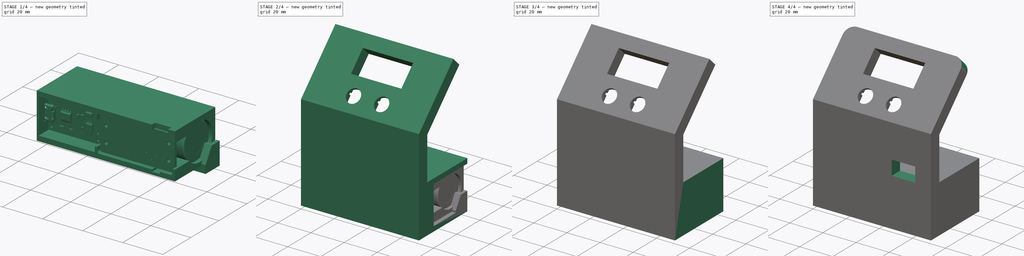
[diagram: build sequence overview — one tinted view per stage of 4, left to right]
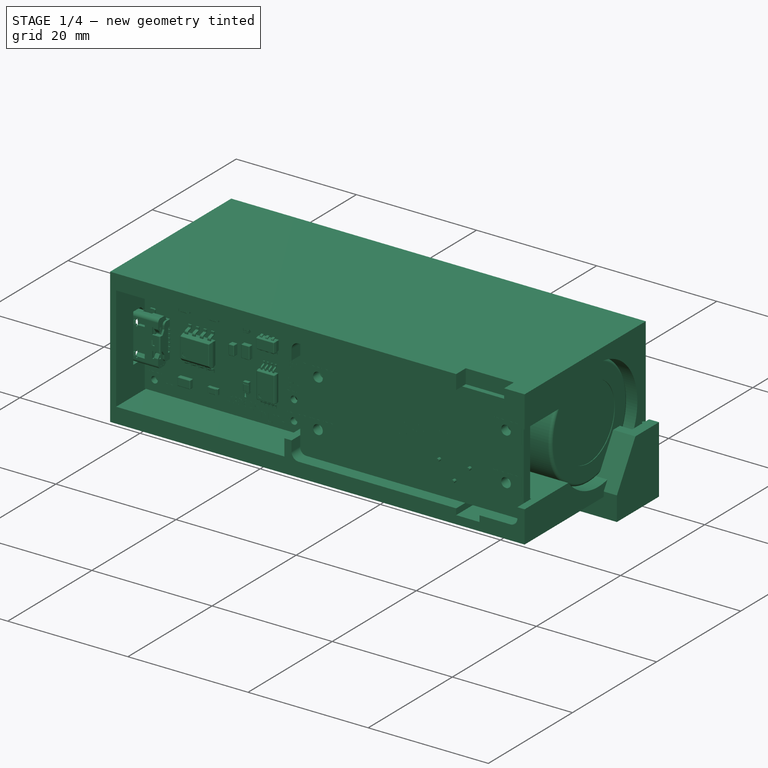
[diagram: stage 1 of 4 — iso view after this stage's code; geometry added in this stage tinted green]
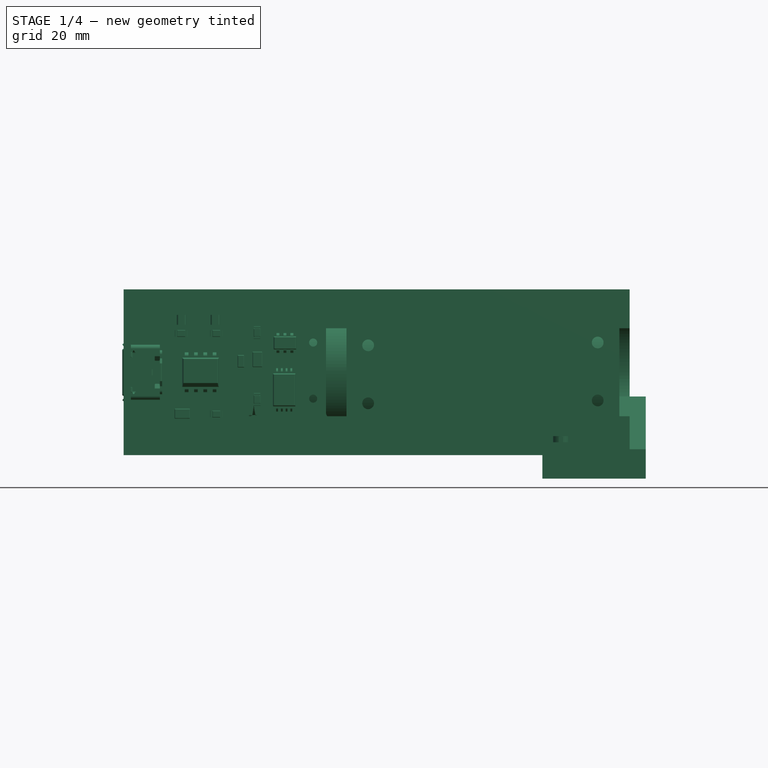
[diagram: stage 1 of 4 — front view after this stage's code; geometry added in this stage tinted green]
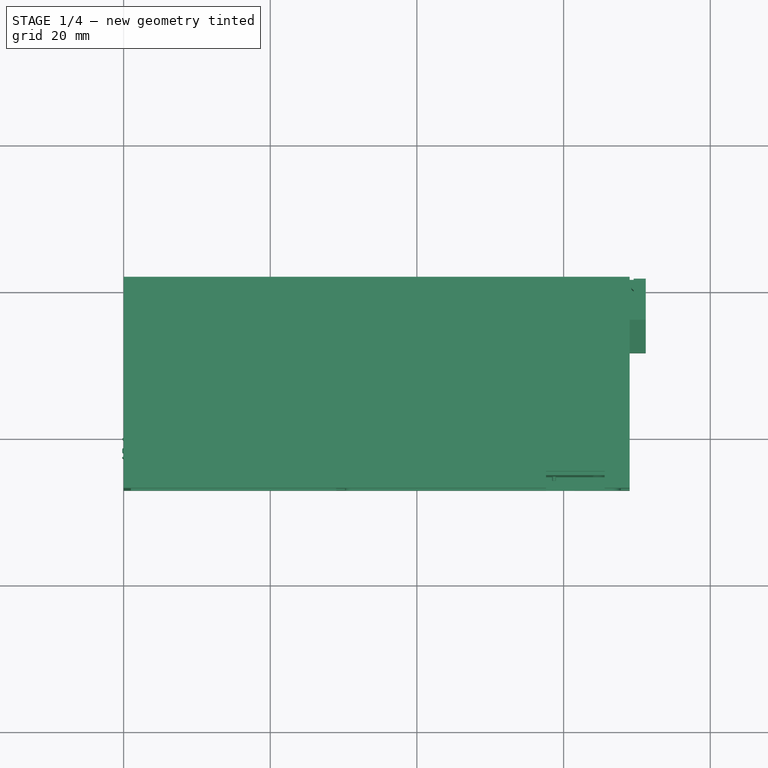
[diagram: stage 1 of 4 — top view after this stage's code; geometry added in this stage tinted green]
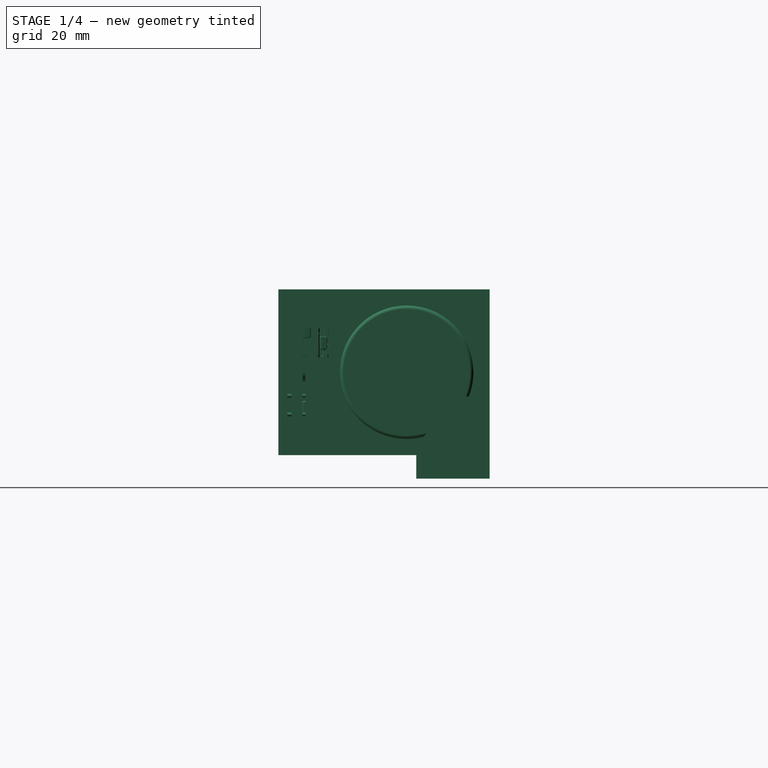
[diagram: stage 1 of 4 — right view after this stage's code; geometry added in this stage tinted green]
FCSTD DOCUMENT  (FreeCAD 0.20R29410 (Git))
Label: chasis
License: CreativeCommons Attribution-ShareAlike
LicenseURL: http://creativecommons.org/licenses/by-sa/4.0/
objects: Part::Feature×11, Sketcher::SketchObject×9, PartDesign::Pocket×6, PartDesign::Pad×3, PartDesign::Body×2, PartDesign::Fillet×1, Part::Compound×1, App::DocumentObjectGroup×1
note: 43 computed .brp shape members not serialized (recipe doc carries the construction recipe); baked Part::Feature solids carry a one-line shape summary decoded from their .brp

FEATURE [PartDesign::Body] Body  label="Body-chasis"
  Group = -> [Sketch,Pad,Sketch001,Sketch002,Pocket,Pocket001,Sketch003,Pad001002,Sketch004,Pocket002,Sketch005,Pocket003,Sketch006,Pocket004,Fillet]
  Origin = -> Origin
  Tip = -> Fillet
FEATURE [Part::Feature] Fusion001005003006  label="Button-O"
  Placement = pos=(44.1,10.5854,60.3624) rot=(1,0,0;0.785398rad)
  shape: bbox 14.18 x 18 x 18 mm, 92 faces (baked)
FEATURE [Part::Feature] Part__Feature001  label="SMRS-1"
  Placement = pos=(54.6,0,33.4) rot=(1,0,0;3.14159rad)
  shape: bbox 15 x 17.9 x 10.5 mm, 383 faces (baked)
FEATURE [Part::Feature] Fusion001005003005  label="Button-X"
  Placement = pos=(27.1,10.5854,60.3624) rot=(1,0,0;0.785398rad)
  shape: bbox 14.18 x 18 x 18 mm, 92 faces (baked)
FEATURE [Part::Feature] Fusion015  label="Nano"
  Placement = pos=(23.25,20.75,41.1) rot=(0,0,1;0rad)
  shape: bbox 46.3 x 18 x 18.5 mm, 701 faces (baked)
FEATURE [Part::Feature] Compound001  label="MiniBB"
  Placement = pos=(23,24.5,30.5) rot=(0,0,1;0rad)
  shape: bbox 46 x 34.5 x 9.5 mm, 5703 faces, 36 solids (baked)
FEATURE [Part::Feature] Fusion001005003002001  label="4-Digit LED Display"
  Placement = pos=(33.6,25.337,70.8829) rot=(0.357407,-0.357407,0.862856;1.71777rad)
  shape: bbox 45 x 19.34 x 19.33 mm, 1342 faces, 6 solids (baked)
FEATURE [Part::Feature] Fusion005  label="MT-3608"
  Placement = pos=(14,0,25.5) rot=(0,1,0;3.14159rad)
  shape: bbox 37.2 x 18.34 x 6.9 mm, 847 faces (baked)
FEATURE [Part::Feature] Fusion004  label="03962A"
  Placement = pos=(-20,0,22) rot=(0,0,1;0rad)
  shape: bbox 29.18 x 17.2 x 3.705 mm, 1582 faces, 2 solids (baked)
FEATURE [Part::Feature] Body001  label="18650-sp"
  Placement = pos=(32.5,0,11.3) rot=(0,0,1;1.5708rad)
  shape: bbox 65 x 19.9 x 19.9 mm, 18 faces (baked)
FEATURE [Part::Feature] Body005  label="box"
  shape: bbox 69 x 22.6 x 28.8 mm, 53 faces (baked)
FEATURE [Part::Compound] Compound  label="powerBank"
  Links = -> [Body005,Fusion004,Body001,Fusion005]
  Placement = pos=(35,41.7,14.5) rot=(1,0,0;1.5708rad)
FEATURE [Part::Feature] Compound001001  label="ToF"
  Placement = pos=(-11,0.1,1) rot=(0,0,1;0rad)
  shape: bbox 10.7 x 3.7 x 14 mm, 120 faces, 0 solids (baked)
FEATURE [Sketcher::SketchObject] Sketch009  label="Sketch-ToF-support-body"
  AttachmentOffset = pos=(0,0,71.2) rot=(0,0,1;0rad)
  FullyConstrained = true
  MapMode = 5
  Placement = pos=(71.2,-1.58e-14,1.58e-14) rot=(0.57735,0.57735,0.57735;2.0944rad)
  Support = -> [YZ_Plane002]
  sketch-geometry (6):
    g0: LineSegment StartX=41.7 StartY=0 StartZ=0 EndX=41.7 EndY=11.2 EndZ=0
    g1: LineSegment StartX=41.7 StartY=11.2 StartZ=0 EndX=36.1 EndY=11.2 EndZ=0
    g2: LineSegment StartX=36.1 StartY=11.2 StartZ=0 EndX=31.7 EndY=4 EndZ=0
    g3: LineSegment StartX=31.7 StartY=4 StartZ=0 EndX=31.7 EndY=0 EndZ=0
    g4: LineSegment StartX=31.7 StartY=0 StartZ=0 EndX=41.7 EndY=0 EndZ=0
    g5: LineSegment StartX=37.7 StartY=0 StartZ=0 EndX=37.7 EndY=11.2 EndZ=0
  constraints (19):
    c: PointOnObject(g0,g-1)
    c: Vertical(g0)
    c: Coincident(g0,g1)
    c: Horizontal(g1)
    c: Coincident(g1,g2)
    c: DistanceX(g0) = 41.7
    c: Coincident(g2,g3)
    c: PointOnObject(g3,g-1)
    c: Vertical(g3)
    c: Coincident(g3,g4)
    c: Coincident(g4,g0)
    c: DistanceX(g4,g4) = 10
    c: DistanceY(g3,g3) = 4
    c: DistanceY(g0,g0) = 11.2
    c: DistanceX(g1,g1) = 5.6
    c: PointOnObject(g5,g4)
    c: PointOnObject(g5,g1)
    c: Vertical(g5)
    c: DistanceX(g5,g0) = 4
FEATURE [PartDesign::Pad] Pad001004  label="Pad-ToF-support-body"
  Direction = (1,-2e-16,3e-16)
  Length = 14.1
  Length2 = 10
  Placement = pos=(0,0,0) rot=(0.57735,0.57735,0.57735;2.0944rad)
  Profile = -> Sketch009
  ReferenceAxis = -> Sketch009 [N_Axis]
  Reversed = true
  Type = 0
FEATURE [Sketcher::SketchObject] Sketch010  label="Sketc-ToF-cutout"
  ExternalGeometry = -> [Pad001004]
  FullyConstrained = true
  MapMode = 5
  Placement = pos=(-3.1e-15,4.9e-15,11.2) rot=(0,0,-1;1.5708rad)
  Support = -> [Pad001004]
  sketch-geometry (14):
    g0: LineSegment StartX=-41.7 StartY=69.55 StartZ=0 EndX=-40.875 EndY=69.55 EndZ=0
    g1: LineSegment StartX=-37.7 StartY=69.55 StartZ=0 EndX=-37.7 EndY=58.75 EndZ=0
    g2: LineSegment StartX=-37.7 StartY=58.75 StartZ=0 EndX=-40.125 EndY=58.75 EndZ=0
    g3: LineSegment StartX=-41.7 StartY=58.75 StartZ=0 EndX=-41.7 EndY=69.55 EndZ=0
    g4: LineSegment StartX=-41.7 StartY=58.75 StartZ=0 EndX=-41.7 EndY=57.1 EndZ=0
    g5: LineSegment StartX=-41.7 StartY=69.55 StartZ=0 EndX=-41.7 EndY=71.2 EndZ=0
    g6: LineSegment StartX=-40.875 StartY=69.55 StartZ=0 EndX=-40.74 EndY=69.37 EndZ=0
    g7: ArcOfCircle CenterX=-40.5 CenterY=69.55 CenterZ=0 NormalX=0 NormalY=0 NormalZ=1 AngleXU=0 Radius=0.3 StartAngle=3.78509 EndAngle=5.63968
    g8: LineSegment StartX=-40.26 StartY=69.37 StartZ=0 EndX=-40.125 EndY=69.55 EndZ=0
    g9: LineSegment StartX=-40.875 StartY=58.75 StartZ=0 EndX=-40.74 EndY=58.93 EndZ=0
    g10: ArcOfCircle CenterX=-40.5 CenterY=58.75 CenterZ=0 NormalX=0 NormalY=0 NormalZ=1 AngleXU=0 Radius=0.3 StartAngle=0.643501 EndAngle=2.49809
    g11: LineSegment StartX=-40.26 StartY=58.93 StartZ=0 EndX=-40.125 EndY=58.75 EndZ=0
    g12: LineSegment StartX=-40.125 StartY=69.55 StartZ=0 EndX=-37.7 EndY=69.55 EndZ=0
    g13: LineSegment StartX=-40.875 StartY=58.75 StartZ=0 EndX=-41.7 EndY=58.75 EndZ=0
  constraints (38):
    c: Coincident(g12,g1)
    c: Coincident(g1,g2)
    c: Coincident(g13,g3)
    c: Horizontal(g0)
    c: Horizontal(g2)
    c: Vertical(g1)
    c: Vertical(g3)
    c: PointOnObject(g0,g-3)
    c: DistanceY(g1,g1) = 10.8
    c: DistanceX(g13,g2) = 4
    c: Coincident(g4,g13)
    c: Coincident(g5,g-3)
    c: Equal(g5,g4)
    c: Coincident(g-3,g4)
    c: Tangent(g6,g7) = -1.5708
    c: Tangent(g7,g8) = -1.5708
    c: PointOnObject(g7,g0)
    c: Radius(g7) = 0.3
    c: Equal(g6,g8)
    c: Coincident(g0,g3)
    c: Coincident(g0,g5)
    c: Tangent(g9,g10) = 1.5708
    c: Tangent(g10,g11) = 1.5708
    c: PointOnObject(g10,g2)
    c: Equal(g9,g11)
    c: Equal(g10,g7)
    c: Vertical(g10,g7)
    c: DistanceX(g0,g7) = 1.2
    c: Coincident(g0,g6)
    c: Coincident(g12,g8)
    c: Horizontal(g12)
    c: Horizontal(g8,g0)
    c: Coincident(g2,g11)
    c: Coincident(g13,g9)
    c: Horizontal(g9,g2)
    c: Horizontal(g13)
    c: DistanceX(g0,g8) = 0.75
    c: DistanceX(g9,g2) = 0.75
FEATURE [PartDesign::Pocket] Pocket005  label="Pocket-ToF-cutout"
  BaseFeature = -> Pad001004
  Direction = (3e-16,-4e-16,-1)
  Length = 10
  Length2 = 5
  Placement = pos=(0,0,0) rot=(0.57735,0.57735,0.57735;2.0944rad)
  Profile = -> Sketch010
  ReferenceAxis = -> Sketch010 [N_Axis]
  Type = 0
FEATURE [PartDesign::Body] Body009  label="Body-ToF-Support"
  Group = -> [Sketch009,Pad001004,Sketch010,Pocket005]
  Origin = -> Origin002
  Placement = pos=(-11,0,29) rot=(0,0,1;0rad)
  Tip = -> Pocket005
FEATURE [App::DocumentObjectGroup] Group  label="Components"
  Group = -> [Fusion001005003006,Fusion001005003005,Part__Feature001,Compound001,Compound,Fusion001005003002001,Fusion015,Compound001001]
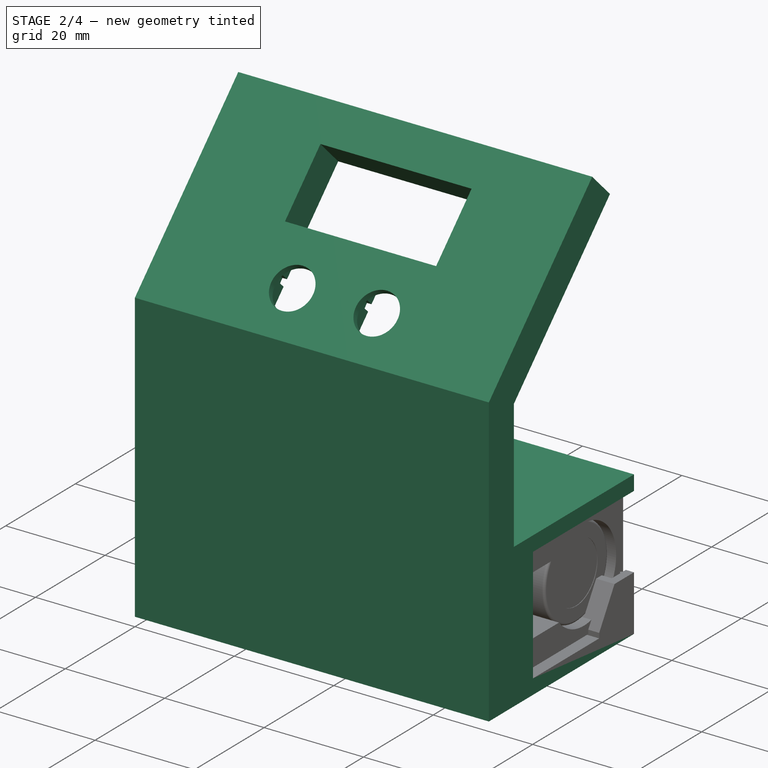
[diagram: stage 2 of 4 — iso view after this stage's code; geometry added in this stage tinted green]
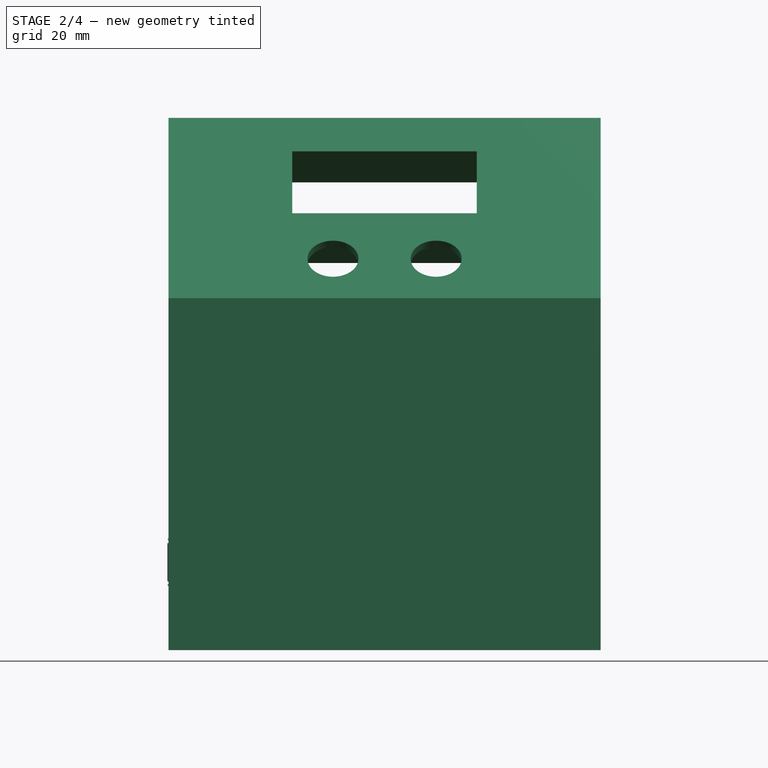
[diagram: stage 2 of 4 — front view after this stage's code; geometry added in this stage tinted green]
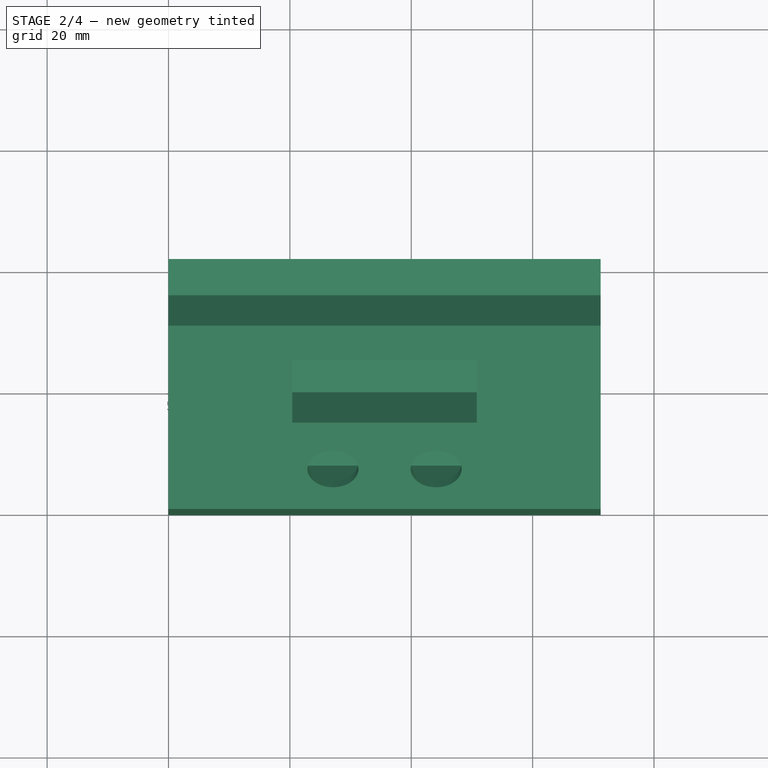
[diagram: stage 2 of 4 — top view after this stage's code; geometry added in this stage tinted green]
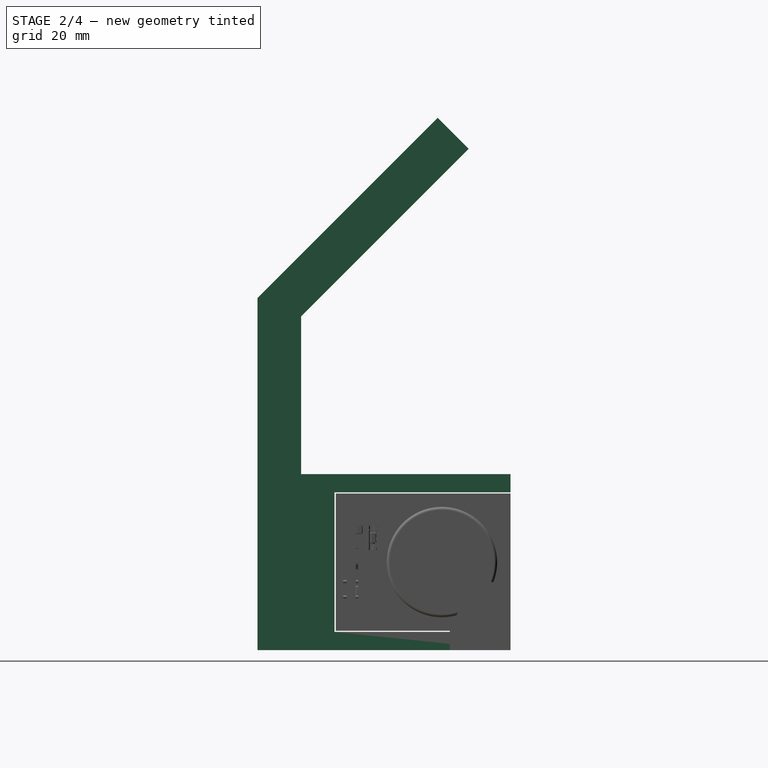
[diagram: stage 2 of 4 — right view after this stage's code; geometry added in this stage tinted green]
FEATURE [Sketcher::SketchObject] Sketch  label="Sketch-chasis-base"
  FullyConstrained = false
  MapMode = 5
  Placement = pos=(0,0,0) rot=(0.57735,0.57735,0.57735;2.0944rad)
  Support = -> [YZ_Plane]
  sketch-geometry (12):
    g0: LineSegment StartX=0 StartY=0 StartZ=0 EndX=0 EndY=58 EndZ=0
    g1: LineSegment StartX=0 StartY=58 StartZ=0 EndX=29.6985 EndY=87.6985 EndZ=0
    g2: LineSegment StartX=29.6985 StartY=87.6985 StartZ=0 EndX=34.7897 EndY=82.6073 EndZ=0
    g3: LineSegment StartX=34.7897 StartY=82.6073 StartZ=0 EndX=7.2 EndY=55.0177 EndZ=0
    g4: LineSegment StartX=7.2 StartY=55.0177 StartZ=0 EndX=7.2 EndY=29 EndZ=0
    g5: LineSegment StartX=41.7 StartY=0 StartZ=0 EndX=0 EndY=0 EndZ=0
    g6: LineSegment StartX=12.7 StartY=26 StartZ=0 EndX=41.7 EndY=26 EndZ=0
    g7: LineSegment StartX=41.7 StartY=26 StartZ=0 EndX=41.7 EndY=29 EndZ=0
    g8: LineSegment StartX=41.7 StartY=29 StartZ=0 EndX=7.2 EndY=29 EndZ=0
    g9: LineSegment StartX=12.7 StartY=3 StartZ=0 EndX=41.7 EndY=3 EndZ=0
    g10: LineSegment StartX=41.7 StartY=3 StartZ=0 EndX=41.7 EndY=0 EndZ=0
    g11: LineSegment StartX=12.7 StartY=26 StartZ=0 EndX=12.7 EndY=3 EndZ=0
  constraints (35):
    c: Coincident(g-1,g0)
    c: Coincident(g0,g1)
    c: Coincident(g1,g2)
    c: Coincident(g2,g3)
    c: Coincident(g3,g4)
    c: Vertical(g4)
    c: PointOnObject(g5,g-1)
    c: Coincident(g5,g0)
    c: Angle(g0,g1) = 2.35619
    c: Parallel(g1,g3)
    c: Perpendicular(g2,g1)
    c: Vertical(g0)
    c: DistanceY(g0,g0) = 58
    c: Distance(g1) = 42
    c: Distance(g2) = 7.2
    c: DistanceX(g5,g5) = 41.7
    c: Horizontal(g6)
    c: Coincident(g6,g7)
    c: Vertical(g7)
    c: Coincident(g7,g8)
    c: Horizontal(g8)
    c: Coincident(g4,g8)
    c: DistanceX(g8,g8) = 34.5
    c: DistanceX(g0,g3) = 7.2
    c: DistanceY(g7,g7) = 3
    c: Horizontal(g9)
    c: Coincident(g9,g10)
    c: Coincident(g10,g5)
    c: Vertical(g10)
    c: DistanceY(g10,g10) = 3
    c: Coincident(g11,g6)
    c: Coincident(g11,g9)
    c: Vertical(g11)
    c: DistanceY(g9,g6) = 23
    c: DistanceX(g9,g9) = 29
FEATURE [PartDesign::Pad] Pad  label="Pad-chasis-base"
  AllowMultiFace = false
  Direction = (1,1,1)
  Length = 71.2
  Length2 = 100
  Placement = pos=(0,0,0) rot=(0.57735,0.57735,0.57735;2.0944rad)
  Profile = -> Sketch
  Refine = true
  Type = 0
FEATURE [Sketcher::SketchObject] Sketch002  label="Sketch-buttons-recess"
  ExternalGeometry = -> [Pad]
  FullyConstrained = false
  MapMode = 5
  Placement = pos=(-5.391e-12,-23.9088,23.9088) rot=(0.678598,0.678598,0.281085;3.68962rad)
  Support = -> [Pad]
  sketch-geometry (41):
    g0: LineSegment StartX=56.3945 StartY=50.3 StartZ=0 EndX=56.3945 EndY=37.9 EndZ=0
    g1: LineSegment StartX=56.3945 StartY=37.9 StartZ=0 EndX=53.3945 EndY=37.9 EndZ=0
    g2: LineSegment StartX=43.9945 StartY=37.9 StartZ=0 EndX=43.9945 EndY=50.3 EndZ=0
    g3: LineSegment StartX=43.9945 StartY=20.9 StartZ=0 EndX=46.9945 EndY=20.9 EndZ=0
    g4: LineSegment StartX=56.3945 StartY=20.9 StartZ=0 EndX=56.3945 EndY=33.3 EndZ=0
    g5: LineSegment StartX=56.3945 StartY=33.3 StartZ=0 EndX=53.3945 EndY=33.3 EndZ=0
    g6: LineSegment StartX=43.9945 StartY=33.3 StartZ=0 EndX=43.9945 EndY=20.9 EndZ=0
    g7: LineSegment StartX=43.9945 StartY=50.3 StartZ=0 EndX=46.9945 EndY=50.3 EndZ=0
    g8: LineSegment StartX=46.9945 StartY=50.3 StartZ=0 EndX=46.9945 EndY=51.2 EndZ=0
    g9: LineSegment StartX=46.9945 StartY=51.2 StartZ=0 EndX=48.3945 EndY=51.2 EndZ=0
    g10: LineSegment StartX=48.3945 StartY=51.2 StartZ=0 EndX=48.3945 EndY=50.3 EndZ=0
    g11: LineSegment StartX=51.9945 StartY=50.3 StartZ=0 EndX=51.9945 EndY=51.2 EndZ=0
    g12: LineSegment StartX=51.9945 StartY=51.2 StartZ=0 EndX=53.3945 EndY=51.2 EndZ=0
    g13: LineSegment StartX=53.3945 StartY=51.2 StartZ=0 EndX=53.3945 EndY=50.3 EndZ=0
    g14: LineSegment StartX=53.3945 StartY=50.3 StartZ=0 EndX=56.3945 EndY=50.3 EndZ=0
    g15: LineSegment StartX=48.3945 StartY=50.3 StartZ=0 EndX=51.9945 EndY=50.3 EndZ=0
    g16: LineSegment StartX=46.9945 StartY=37.9 StartZ=0 EndX=46.9945 EndY=37 EndZ=0
    g17: LineSegment StartX=46.9945 StartY=37 StartZ=0 EndX=48.3945 EndY=37 EndZ=0
    g18: LineSegment StartX=48.3945 StartY=37 StartZ=0 EndX=48.3945 EndY=37.9 EndZ=0
    g19: LineSegment StartX=51.9945 StartY=37.9 StartZ=0 EndX=51.9945 EndY=37 EndZ=0
    g20: LineSegment StartX=51.9945 StartY=37 StartZ=0 EndX=53.3945 EndY=37 EndZ=0
    g21: LineSegment StartX=53.3945 StartY=37 StartZ=0 EndX=53.3945 EndY=37.9 EndZ=0
    g22: LineSegment StartX=46.9945 StartY=37.9 StartZ=0 EndX=43.9945 EndY=37.9 EndZ=0
    g23: LineSegment StartX=51.9945 StartY=37.9 StartZ=0 EndX=48.3945 EndY=37.9 EndZ=0
    g24: LineSegment StartX=46.9945 StartY=33.3 StartZ=0 EndX=46.9945 EndY=34.2 EndZ=0
    g25: LineSegment StartX=46.9945 StartY=34.2 StartZ=0 EndX=48.3945 EndY=34.2 EndZ=0
    g26: LineSegment StartX=48.3945 StartY=34.2 StartZ=0 EndX=48.3945 EndY=33.3 EndZ=0
    g27: LineSegment StartX=51.9945 StartY=33.3 StartZ=0 EndX=51.9945 EndY=34.2 EndZ=0
    g28: LineSegment StartX=51.9945 StartY=34.2 StartZ=0 EndX=53.3945 EndY=34.2 EndZ=0
    g29: LineSegment StartX=53.3945 StartY=34.2 StartZ=0 EndX=53.3945 EndY=33.3 EndZ=0
    g30: LineSegment StartX=46.9945 StartY=20.9 StartZ=0 EndX=46.9945 EndY=20 EndZ=0
    g31: LineSegment StartX=46.9945 StartY=20 StartZ=0 EndX=48.3945 EndY=20 EndZ=0
    g32: LineSegment StartX=48.3945 StartY=20 StartZ=0 EndX=48.3945 EndY=20.9 EndZ=0
    g33: LineSegment StartX=51.9945 StartY=20.9 StartZ=0 EndX=51.9945 EndY=20 EndZ=0
    g34: LineSegment StartX=51.9945 StartY=20 StartZ=0 EndX=53.3945 EndY=20 EndZ=0
    g35: LineSegment StartX=53.3945 StartY=20 StartZ=0 EndX=53.3945 EndY=20.9 EndZ=0
    g36: LineSegment StartX=53.3945 StartY=20.9 StartZ=0 EndX=56.3945 EndY=20.9 EndZ=0
    g37: LineSegment StartX=48.3945 StartY=20.9 StartZ=0 EndX=51.9945 EndY=20.9 EndZ=0
    g38: LineSegment StartX=46.9945 StartY=33.3 StartZ=0 EndX=43.9945 EndY=33.3 EndZ=0
    g39: LineSegment StartX=51.9945 StartY=33.3 StartZ=0 EndX=48.3945 EndY=33.3 EndZ=0
    g40: LineSegment StartX=56.3945 StartY=37.9 StartZ=0 EndX=56.3945 EndY=33.3 EndZ=0
  constraints (114):
    c: Coincident(g0,g1)
    c: Horizontal(g1)
    c: Vertical(g0)
    c: Vertical(g2)
    c: Coincident(g36,g4)
    c: Coincident(g4,g5)
    c: Coincident(g38,g6)
    c: Coincident(g6,g3)
    c: Horizontal(g3)
    c: Horizontal(g5)
    c: Vertical(g4)
    c: Vertical(g6)
    c: DistanceY(g0,g0) = 12.4
    c: DistanceY(g-1,g36) = 20.9
    c: DistanceX(g2,g0) = 12.4
    c: Coincident(g14,g0)
    c: Horizontal(g7)
    c: Coincident(g7,g2)
    c: Coincident(g22,g2)
    c: Vertical(g8)
    c: Coincident(g8,g9)
    c: Horizontal(g9)
    c: Coincident(g9,g10)
    c: Vertical(g10)
    c: Vertical(g11)
    c: Coincident(g11,g12)
    c: Horizontal(g12)
    c: Coincident(g12,g13)
    c: Vertical(g13)
    c: Coincident(g15,g11)
    c: Coincident(g14,g13)
    c: Tangent(g7,g14)
    c: Coincident(g7,g8)
    c: Coincident(g15,g10)
    c: Tangent(g7,g15)
    c: Vertical(g16)
    c: Coincident(g16,g17)
    c: Horizontal(g17)
    c: Coincident(g17,g18)
    c: Vertical(g18)
    c: Vertical(g19)
    c: Coincident(g19,g20)
    c: Horizontal(g20)
    c: Coincident(g20,g21)
    c: Vertical(g21)
    c: Coincident(g23,g18)
    c: Coincident(g22,g16)
    c: Tangent(g1,g22)
    c: Coincident(g1,g21)
    c: Coincident(g23,g19)
    c: Tangent(g1,g23)
    c: Vertical(g24)
    c: Coincident(g24,g25)
    c: Horizontal(g25)
    c: Coincident(g25,g26)
    c: Vertical(g26)
    c: Vertical(g27)
    c: Coincident(g27,g28)
    c: Horizontal(g28)
    c: Coincident(g28,g29)
    c: Vertical(g29)
    c: Vertical(g30)
    c: Coincident(g30,g31)
    c: Horizontal(g31)
    c: Coincident(g31,g32)
    c: Vertical(g32)
    c: Vertical(g33)
    c: Coincident(g33,g34)
    c: Horizontal(g34)
    c: Coincident(g34,g35)
    c: Vertical(g35)
    c: Coincident(g37,g33)
    c: Coincident(g36,g35)
    c: Tangent(g3,g36)
    c: Coincident(g3,g30)
    c: Coincident(g37,g32)
    c: Tangent(g3,g37)
    c: Coincident(g39,g26)
    c: Coincident(g38,g24)
    c: Tangent(g5,g38)
    c: Coincident(g5,g29)
    c: Coincident(g39,g27)
    c: Tangent(g5,g39)
    c: DistanceY(g4,g4) = 12.4
    c: DistanceX(g3,g4) = 12.4
    c: DistanceY(g4,g0) = 4.6
    c: Coincident(g40,g0)
    c: Coincident(g40,g4)
    c: Vertical(g40)
    c: DistanceY(g13,g13) = 0.9
    c: DistanceX(g12,g12) = 1.4
    c: Equal(g9,g12)
    c: Equal(g10,g13)
    c: DistanceX(g15,g15) = 3.6
    c: Equal(g20,g17)
    c: Equal(g17,g12)
    c: Equal(g18,g19)
    c: Equal(g19,g13)
    c: Equal(g23,g15)
    c: Equal(g7,g14)
    c: Equal(g22,g1)
    c: Equal(g28,g25)
    c: Equal(g25,g31)
    c: Equal(g31,g34)
    c: Equal(g34,g17)
    c: Equal(g26,g27)
    c: Equal(g27,g19)
    c: Equal(g19,g32)
    c: Equal(g32,g33)
    c: Equal(g23,g39)
    c: Equal(g38,g5)
    c: Equal(g3,g36)
    c: Equal(g37,g39)
    c: PointOnObject(g2,g-3)
FEATURE [PartDesign::Pocket] Pocket  label="Pocket-button-recess"
  AllowMultiFace = false
  BaseFeature = -> Pad
  Direction = (1,1,1)
  Length = 5.7
  Length2 = 100
  Placement = pos=(0,0,0) rot=(0.57735,0.57735,0.57735;2.0944rad)
  Profile = -> Sketch002
  Refine = true
  Type = 0
FEATURE [Sketcher::SketchObject] Sketch001  label="Sketch-front-holes"
  FullyConstrained = false
  MapMode = 5
  Placement = pos=(-6.539e-12,-29,29) rot=(0.357407,0.357407,-0.862856;1.71777rad)
  Support = -> [Pocket]
  sketch-geometry (7):
    g0: LineSegment StartX=-75.195 StartY=50.8 StartZ=0 EndX=-60.795 EndY=50.8 EndZ=0
    g1: LineSegment StartX=-60.795 StartY=50.8 StartZ=0 EndX=-60.795 EndY=20.4 EndZ=0
    g2: LineSegment StartX=-60.795 StartY=20.4 StartZ=0 EndX=-75.195 EndY=20.4 EndZ=0
    g3: LineSegment StartX=-75.195 StartY=20.4 StartZ=0 EndX=-75.195 EndY=50.8 EndZ=0
    g4: Circle CenterX=-50.195 CenterY=44.1 CenterZ=0 NormalX=0 NormalY=0 NormalZ=1 AngleXU=0 Radius=4.2
    g5: Circle CenterX=-50.195 CenterY=27.1 CenterZ=0 NormalX=0 NormalY=0 NormalZ=1 AngleXU=0 Radius=4.2
    g6: LineSegment StartX=-50.195 StartY=44.1 StartZ=0 EndX=-50.195 EndY=27.1 EndZ=0
  constraints (20):
    c: Coincident(g0,g1)
    c: Coincident(g1,g2)
    c: Coincident(g2,g3)
    c: Coincident(g3,g0)
    c: Horizontal(g0)
    c: Horizontal(g2)
    c: Vertical(g1)
    c: Vertical(g3)
    c: DistanceY(g3,g3) = 30.4
    c: DistanceX(g0,g0) = 14.4
    c: Radius(g4) = 4.2
    c: Equal(g5,g4)
    c: DistanceY(g5,g4) = 17
    c: Coincident(g6,g4)
    c: Coincident(g6,g5)
    c: Vertical(g6)
    c: DistanceX(g0,g4) = 10.6
    c: DistanceY(g4,g0) = 6.7
    c: DistanceY(g-1,g1) = 20.4
    c: DistanceX(g4,g-1) = 50.195
FEATURE [PartDesign::Pocket] Pocket001  label="Pocket-front-holes"
  AllowMultiFace = false
  BaseFeature = -> Pocket
  Direction = (1,1,1)
  Length = 7.5
  Length2 = 100
  Placement = pos=(0,0,0) rot=(0.57735,0.57735,0.57735;2.0944rad)
  Profile = -> Sketch001
  Refine = true
  Type = 0
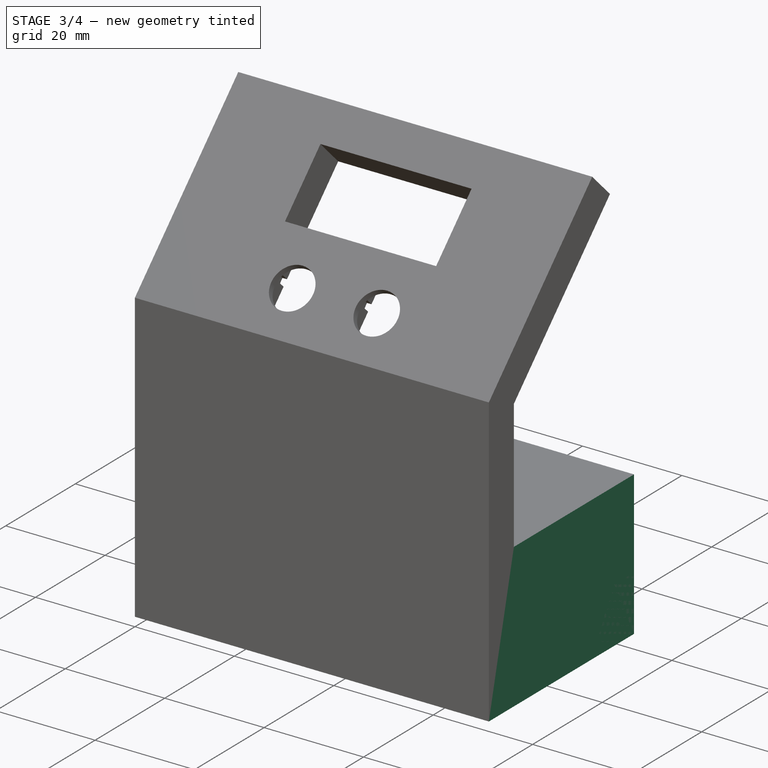
[diagram: stage 3 of 4 — iso view after this stage's code; geometry added in this stage tinted green]
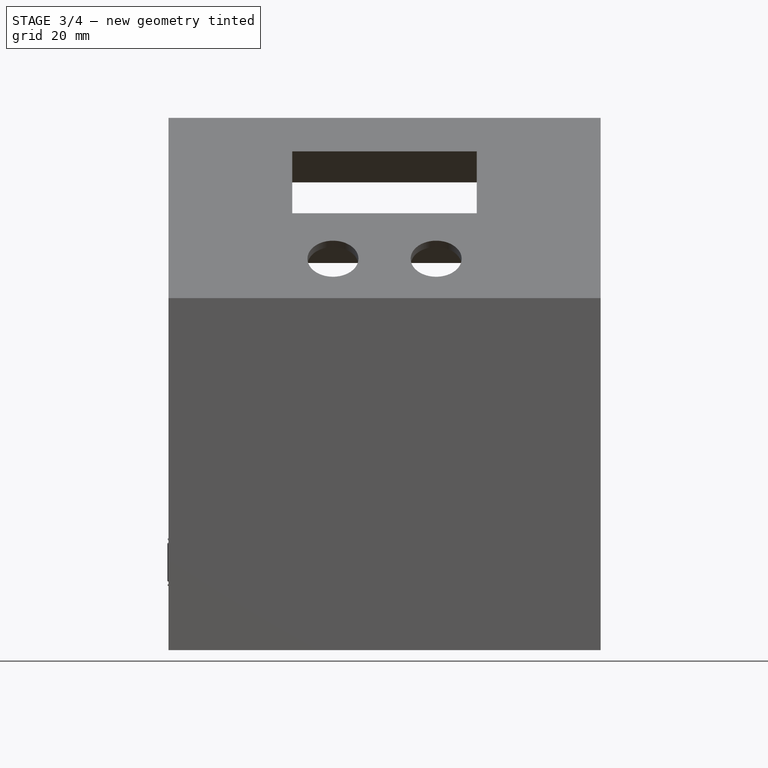
[diagram: stage 3 of 4 — front view after this stage's code; geometry added in this stage tinted green]
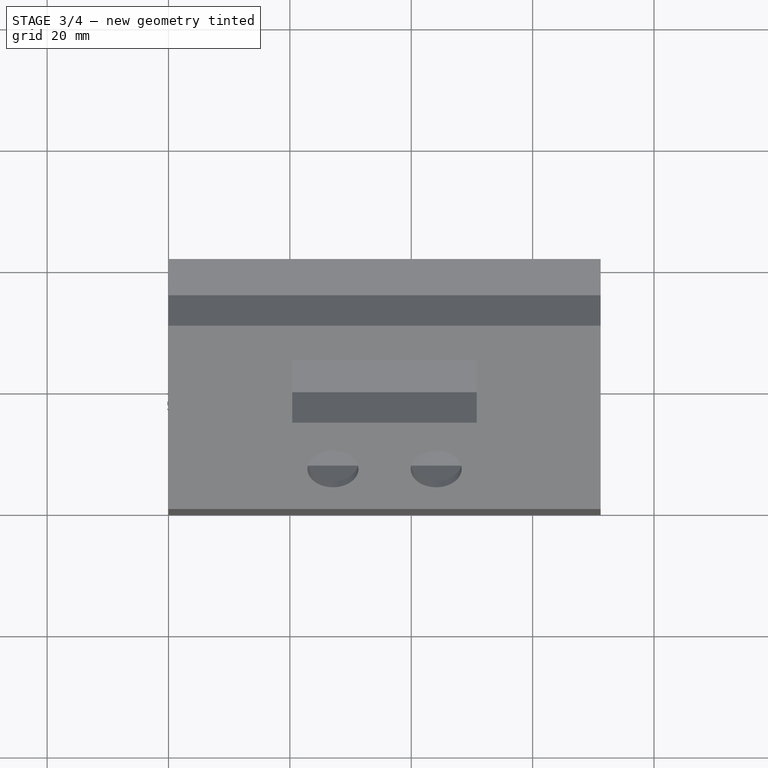
[diagram: stage 3 of 4 — top view after this stage's code; geometry added in this stage tinted green]
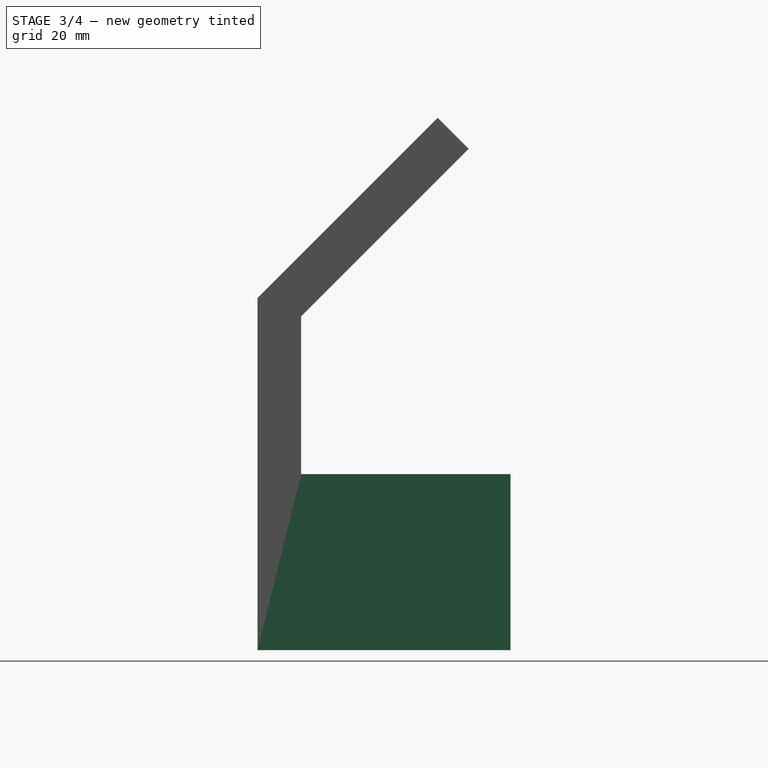
[diagram: stage 3 of 4 — right view after this stage's code; geometry added in this stage tinted green]
FEATURE [Sketcher::SketchObject] Sketch003  label="Sketch-lateral"
  FullyConstrained = true
  MapMode = 5
  Placement = pos=(71.2,-8.017e-12,8.0328e-12) rot=(0.57735,0.57735,0.57735;2.0944rad)
  Support = -> [Pocket001]
  sketch-geometry (4):
    g0: LineSegment StartX=0 StartY=0 StartZ=0 EndX=41.7 EndY=0 EndZ=0
    g1: LineSegment StartX=41.7 StartY=0 StartZ=0 EndX=41.7 EndY=29 EndZ=0
    g2: LineSegment StartX=0 StartY=29 StartZ=0 EndX=0 EndY=0 EndZ=0
    g3: LineSegment StartX=41.7 StartY=29 StartZ=0 EndX=0 EndY=29 EndZ=0
  constraints (11):
    c: Coincident(g0,g1)
    c: Coincident(g2,g0)
    c: Horizontal(g0)
    c: Vertical(g1)
    c: Vertical(g2)
    c: Coincident(g0,g-1)
    c: DistanceX(g0,g0) = 41.7
    c: Horizontal(g3)
    c: Coincident(g1,g3)
    c: DistanceY(g1,g1) = 29
    c: Coincident(g2,g3)
FEATURE [PartDesign::Pad] Pad001002  label="Pad-lateral"
  AllowMultiFace = false
  BaseFeature = -> Pocket001
  Direction = (1,-1.126e-13,1.128e-13)
  Length = 2
  Length2 = 100
  Placement = pos=(0,0,0) rot=(0.57735,0.57735,0.57735;2.0944rad)
  Profile = -> Sketch003
  Refine = true
  Reversed = true
  Type = 0
FEATURE [Sketcher::SketchObject] Sketch004  label="Sketch-display-pins-holes"
  FullyConstrained = false
  MapMode = 5
  Placement = pos=(-5.391e-12,-23.9088,23.9088) rot=(0.678598,0.678598,0.281085;3.68962rad)
  Support = -> [Pad001002]
  sketch-geometry (9):
    g0: ArcOfCircle CenterX=64.247 CenterY=54.8 CenterZ=0 NormalX=0 NormalY=0 NormalZ=1 AngleXU=0 Radius=0.9 StartAngle=1.5708 EndAngle=4.71239
    g1: ArcOfCircle CenterX=71.867 CenterY=54.8 CenterZ=0 NormalX=0 NormalY=0 NormalZ=1 AngleXU=0 Radius=0.9 StartAngle=4.71239 EndAngle=7.85398
    g2: LineSegment StartX=64.247 StartY=53.9 StartZ=0 EndX=71.867 EndY=53.9 EndZ=0
    g3: LineSegment StartX=64.247 StartY=55.7 StartZ=0 EndX=71.867 EndY=55.7 EndZ=0
    g4: ArcOfCircle CenterX=64.247 CenterY=12.4 CenterZ=0 NormalX=0 NormalY=0 NormalZ=1 AngleXU=0 Radius=0.9 StartAngle=1.5708 EndAngle=4.71239
    g5: ArcOfCircle CenterX=71.867 CenterY=12.4 CenterZ=0 NormalX=0 NormalY=0 NormalZ=1 AngleXU=0 Radius=0.9 StartAngle=4.71239 EndAngle=7.85398
    g6: LineSegment StartX=64.247 StartY=13.3 StartZ=0 EndX=71.867 EndY=13.3 EndZ=0
    g7: LineSegment StartX=64.247 StartY=11.5 StartZ=0 EndX=71.867 EndY=11.5 EndZ=0
    g8: LineSegment StartX=64.247 StartY=12.4 StartZ=0 EndX=64.247 EndY=54.8 EndZ=0
  constraints (21):
    c: Tangent(g0,g3) = 1.5708
    c: Tangent(g0,g2) = -1.5708
    c: Tangent(g2,g1) = -1.5708
    c: Tangent(g3,g1) = 1.5708
    c: Horizontal(g2)
    c: Equal(g0,g1)
    c: Radius(g1) = 0.9
    c: DistanceX(g0,g1) = 7.62
    c: Tangent(g4,g7) = -1.5708
    c: Tangent(g4,g6) = 1.5708
    c: Tangent(g6,g5) = 1.5708
    c: Tangent(g7,g5) = -1.5708
    c: Horizontal(g6)
    c: Equal(g4,g5)
    c: Radius(g5) = 0.9
    c: DistanceX(g4,g5) = 7.62
    c: Coincident(g8,g4)
    c: Coincident(g8,g0)
    c: Vertical(g8)
    c: DistanceY(g8,g8) = 42.4
    c: DistanceY(g-1,g4) = 12.4
FEATURE [PartDesign::Pocket] Pocket002  label="Pocket-display-pins-holes"
  AllowMultiFace = false
  BaseFeature = -> Pad001002
  Direction = (-1.594e-13,-0.707107,0.707107)
  Length = 2
  Length2 = 100
  Placement = pos=(0,0,0) rot=(0.57735,0.57735,0.57735;2.0944rad)
  Profile = -> Sketch004
  Refine = true
  Type = 0
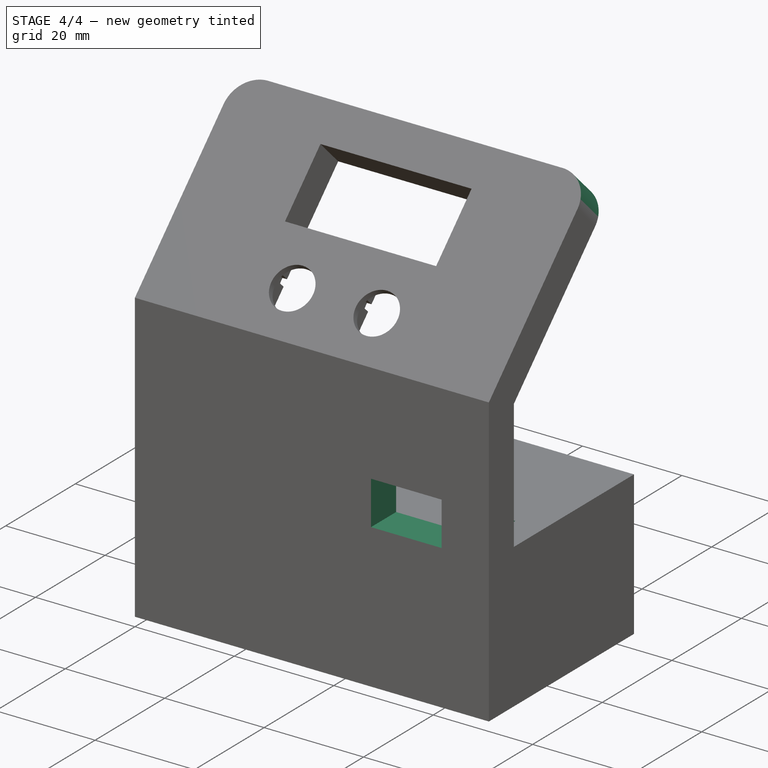
[diagram: stage 4 of 4 — iso view after this stage's code; geometry added in this stage tinted green]
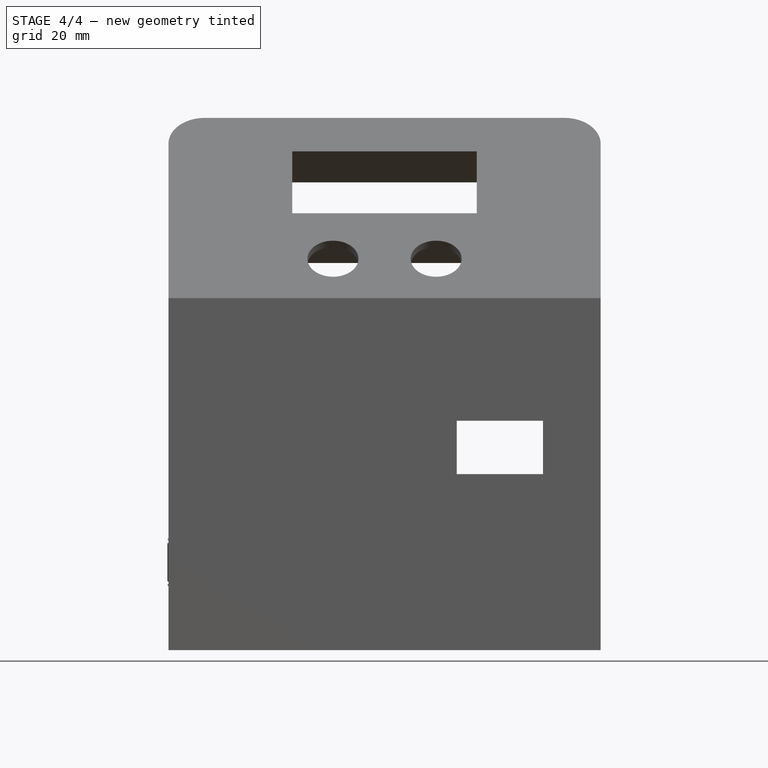
[diagram: stage 4 of 4 — front view after this stage's code; geometry added in this stage tinted green]
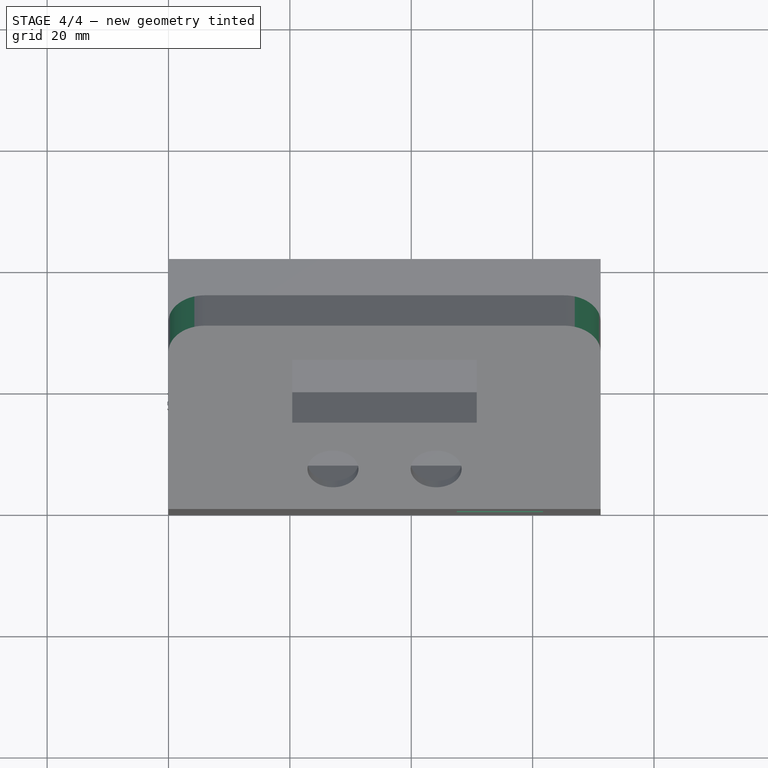
[diagram: stage 4 of 4 — top view after this stage's code; geometry added in this stage tinted green]
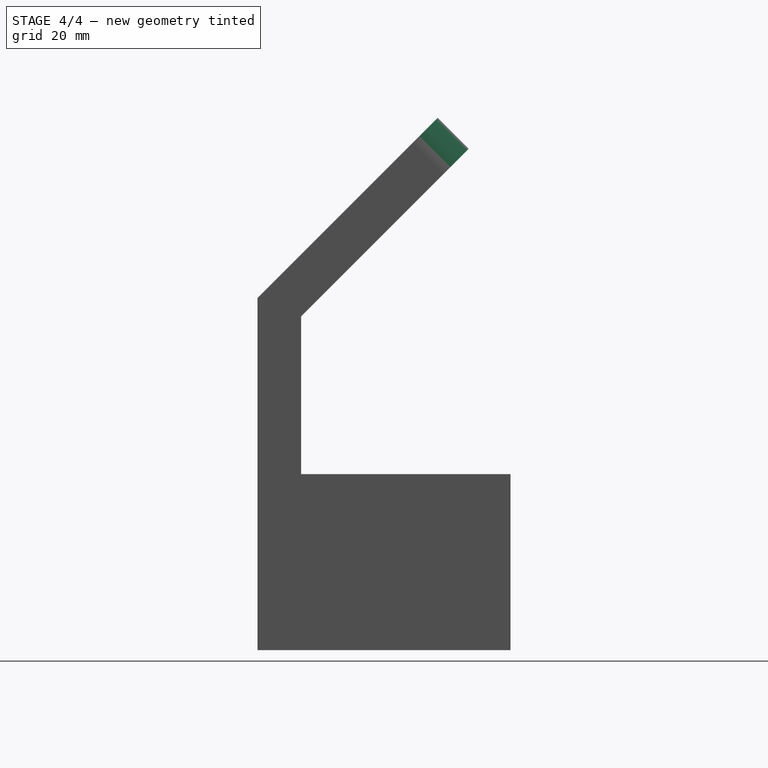
[diagram: stage 4 of 4 — right view after this stage's code; geometry added in this stage tinted green]
FEATURE [Sketcher::SketchObject] Sketch005  label="Sketch-power-cables-hole"
  ExternalGeometry = -> [Pocket002]
  FullyConstrained = true
  MapMode = 5
  Placement = pos=(-3.2712e-12,3.2712e-12,29) rot=(0,0,-1;1.5708rad)
  Support = -> [Pocket002]
  sketch-geometry (4):
    g0: LineSegment StartX=-12.7 StartY=65.6 StartZ=0 EndX=-15.6 EndY=65.6 EndZ=0
    g1: LineSegment StartX=-15.6 StartY=65.6 StartZ=0 EndX=-15.6 EndY=54.8 EndZ=0
    g2: LineSegment StartX=-15.6 StartY=54.8 StartZ=0 EndX=-12.7 EndY=54.8 EndZ=0
    g3: LineSegment StartX=-12.7 StartY=54.8 StartZ=0 EndX=-12.7 EndY=65.6 EndZ=0
  constraints (12):
    c: Coincident(g0,g1)
    c: Coincident(g1,g2)
    c: Coincident(g2,g3)
    c: Coincident(g3,g0)
    c: Horizontal(g0)
    c: Horizontal(g2)
    c: Vertical(g1)
    c: Vertical(g3)
    c: DistanceY(g3,g3) = 10.8
    c: DistanceX(g2,g2) = 2.9
    c: PointOnObject(g0,g-3)
    c: DistanceY(g0,g-3) = 3.6
FEATURE [PartDesign::Pocket] Pocket003  label="Pocket-power-cables-hole"
  AllowMultiFace = false
  BaseFeature = -> Pocket002
  Direction = (1.132e-13,-1.127e-13,-1)
  Length = 4
  Length2 = 100
  Placement = pos=(0,0,0) rot=(0.57735,0.57735,0.57735;2.0944rad)
  Profile = -> Sketch005
  Refine = true
  Type = 0
FEATURE [Sketcher::SketchObject] Sketch006  label="Sketch-rockerswitch-hole"
  ExternalGeometry = -> [Pocket003]
  FullyConstrained = true
  MapMode = 5
  Placement = pos=(8.114e-13,7.2,-8.122e-13) rot=(0.57735,0.57735,0.57735;4.18879rad)
  Support = -> [Pocket003]
  sketch-geometry (4):
    g0: LineSegment StartX=29 StartY=61.7 StartZ=0 EndX=37.8 EndY=61.7 EndZ=0
    g1: LineSegment StartX=37.8 StartY=61.7 StartZ=0 EndX=37.8 EndY=47.5 EndZ=0
    g2: LineSegment StartX=37.8 StartY=47.5 StartZ=0 EndX=29 EndY=47.5 EndZ=0
    g3: LineSegment StartX=29 StartY=47.5 StartZ=0 EndX=29 EndY=61.7 EndZ=0
  constraints (12):
    c: Coincident(g0,g1)
    c: Coincident(g1,g2)
    c: Coincident(g2,g3)
    c: Coincident(g3,g0)
    c: Horizontal(g0)
    c: Horizontal(g2)
    c: Vertical(g1)
    c: Vertical(g3)
    c: DistanceX(g0,g0) = 8.8
    c: DistanceY(g1,g1) = 14.2
    c: DistanceY(g-1,g2) = 47.5
    c: PointOnObject(g0,g-3)
FEATURE [PartDesign::Pocket] Pocket004  label="Pocket-rockerswitch-hole"
  AllowMultiFace = false
  BaseFeature = -> Pocket003
  Direction = (-1.123e-13,-1,1.134e-13)
  Length = 5
  Length2 = 100
  Placement = pos=(0,0,0) rot=(0.57735,0.57735,0.57735;2.0944rad)
  Profile = -> Sketch006
  Refine = true
  Type = 1
FEATURE [PartDesign::Fillet] Fillet
  Base = -> Pocket004 [Edge44,Edge7]
  BaseFeature = -> Pocket004
  Placement = pos=(0,0,0) rot=(0.57735,0.57735,0.57735;2.0944rad)
  Radius = 6
  SupportTransform = false
  UseAllEdges = false
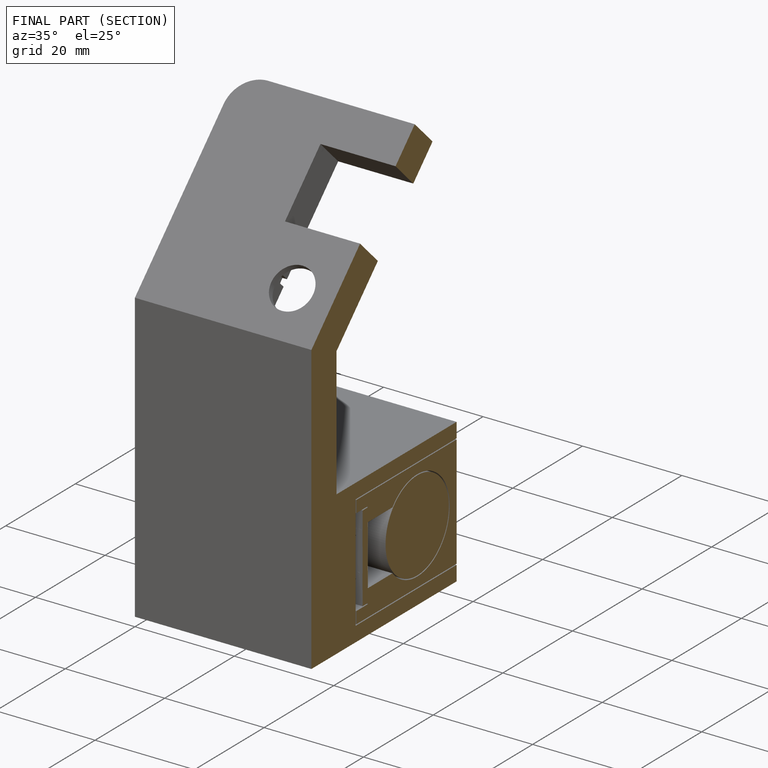
[diagram: finished part — half-section view (interior)]
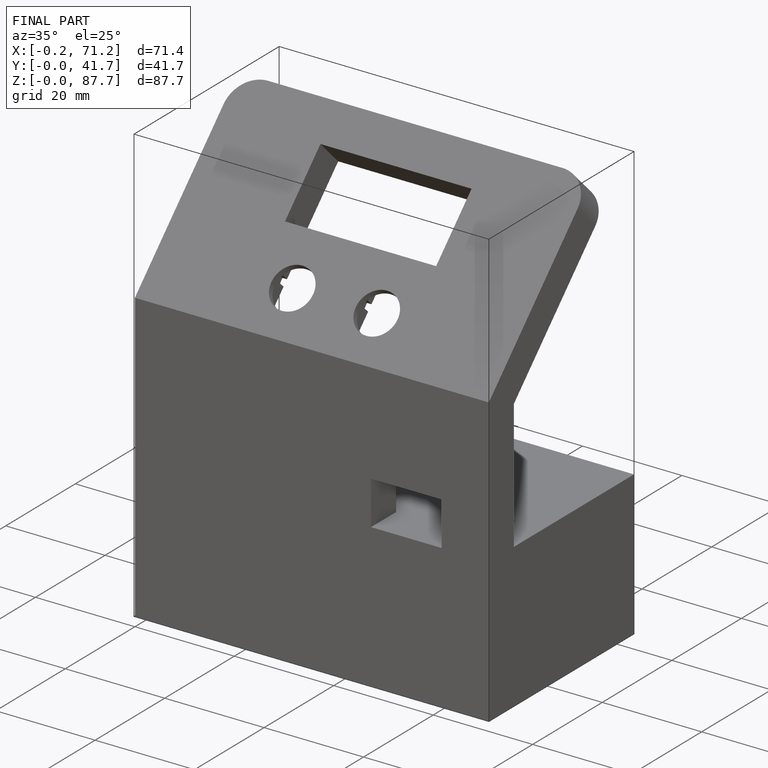
[diagram: finished part — iso view with bounding-box wireframe]
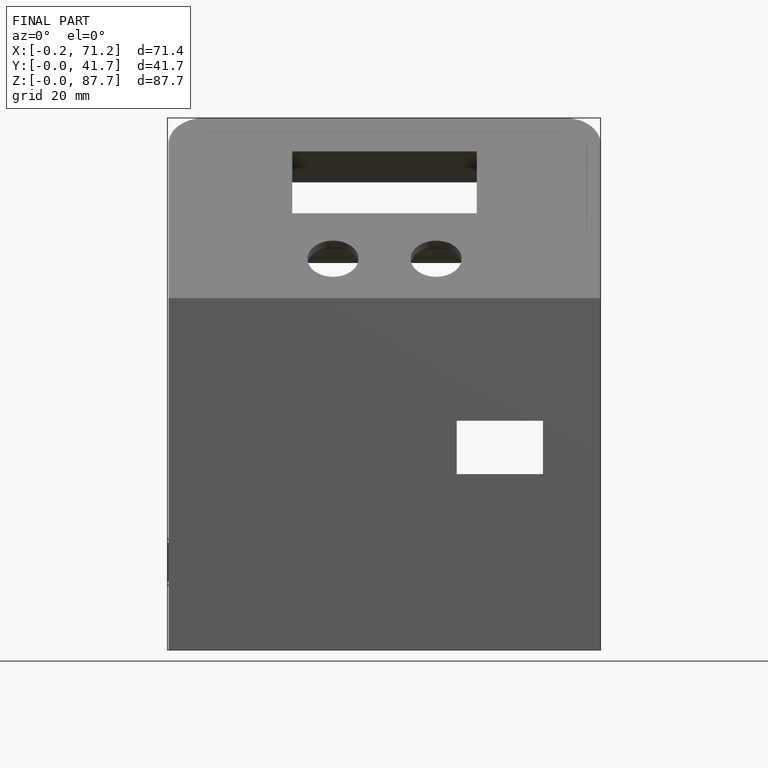
[diagram: finished part — front view with bounding-box wireframe]
